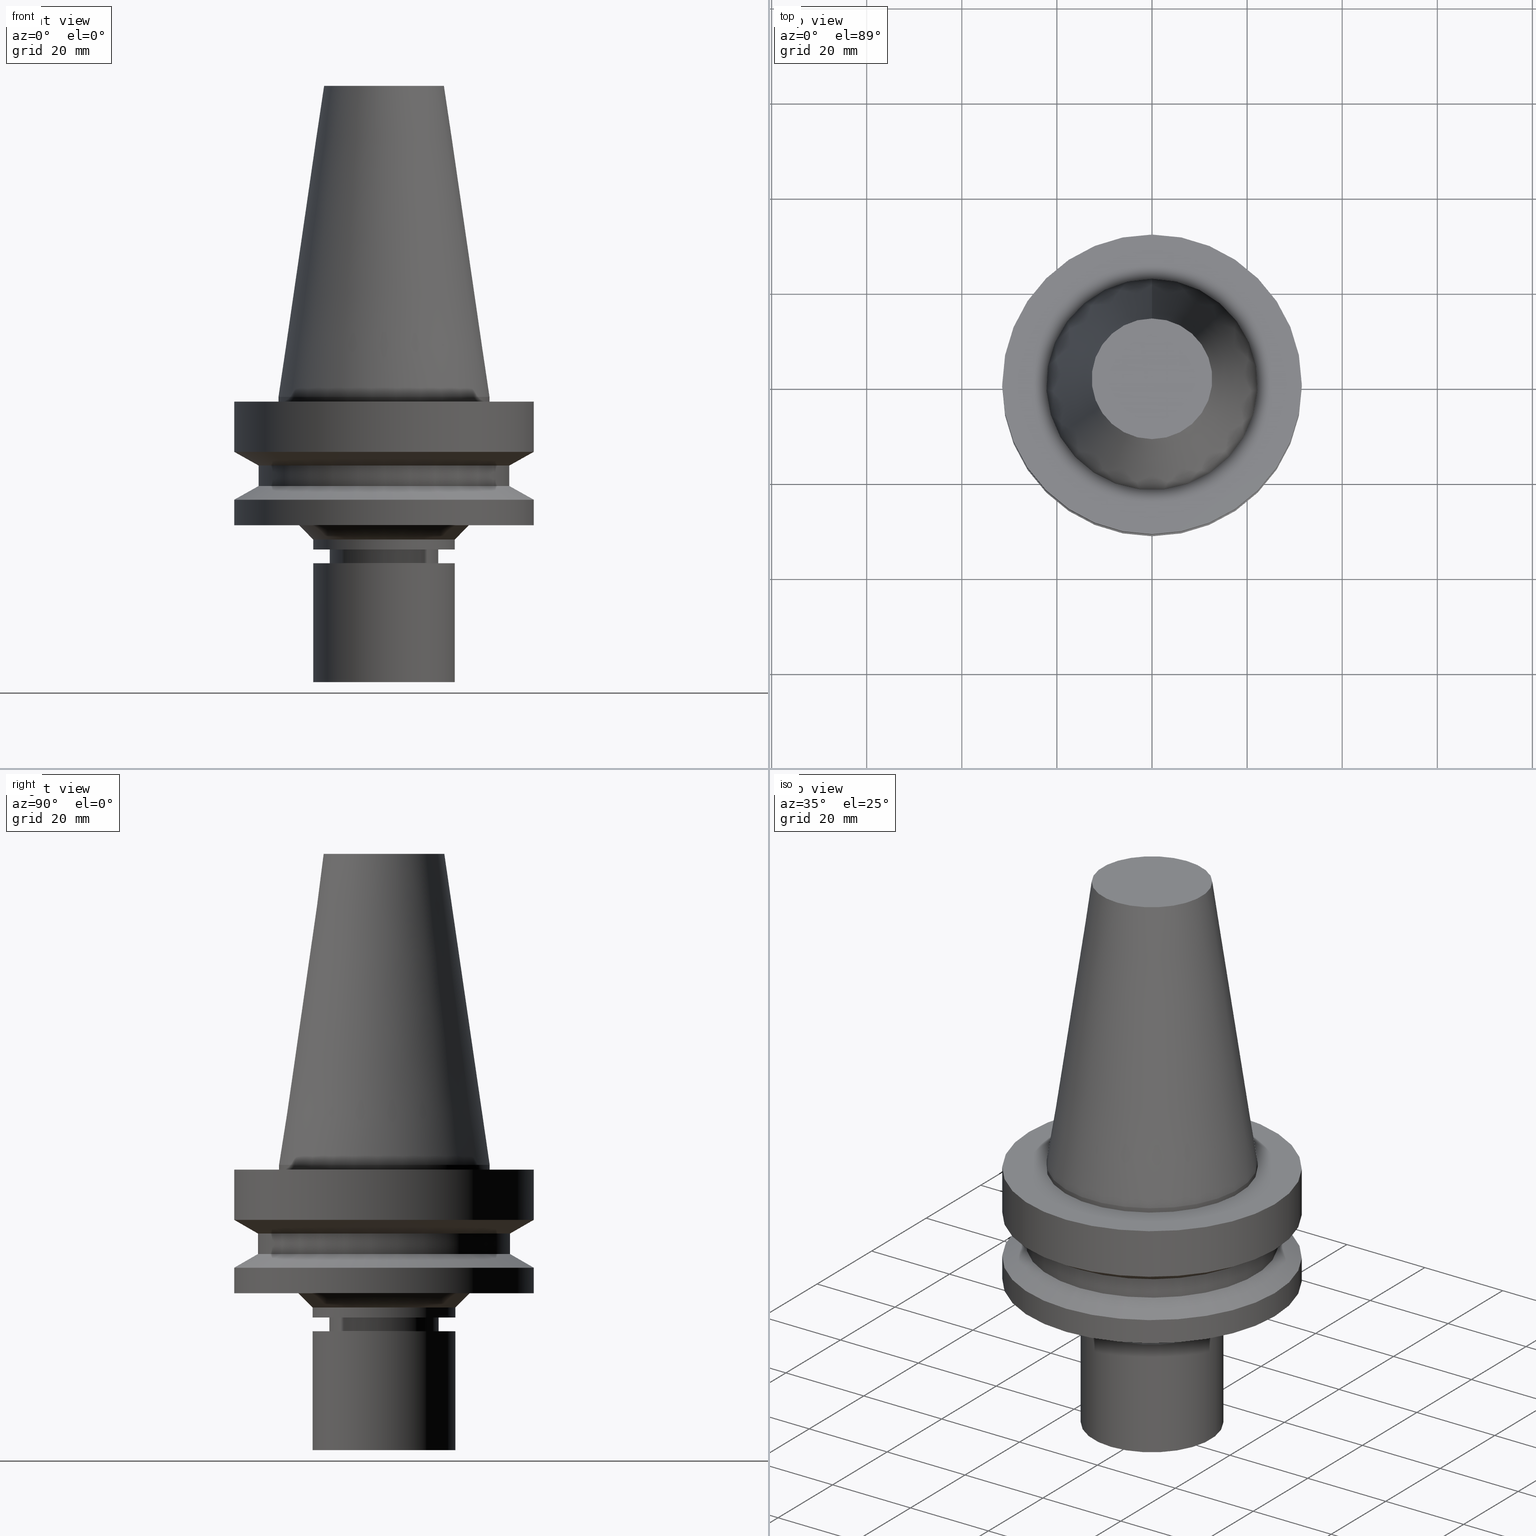
[diagram: canonical four-view strip — front | top / right | iso, engineering-drawing reading convention]
A machine part, canonical four-view strip (front | top / right | iso — engineering-drawing reading convention). The complete STEP part file that produces these views, byte-faithful:
ISO-10303-21;
HEADER;
FILE_DESCRIPTION((''),'1');
FILE_NAME('V:/90_\X2\53D65F9730C730FC30BF\X0\/00_\X2\6DE18DEF30C730FC30BF\X0\/ALL/BBT-BKUS\X2\FF76FF80FF9BFF78FF9E752852A05DE556F3\X0\201801/BBT40-MEGAER/BBT40-MEGAER16-60NL.stp','2018-02-07T01:39:58',(''),(''),'Spatial Interop R21 SP3','Kubotek KeyCreator 2011 V10.0.2 (22737)',' ');
FILE_SCHEMA(('automotive_design'));
ENDSEC;
DATA;
#1=MECHANICAL_DESIGN_GEOMETRIC_PRESENTATION_REPRESENTATION(' ',(#14,#15,#16,#17,#18,#19,#20,#21,#22,#23,#24,#25,#26,#27,#28,#29,#30,#31,#32,#33,#34,#35,#36,#37,#38,#39,#40,#41,#42,#43,#44,#45,#46,#47,#48,#49,#50,#51,#52,#53,#54,#55),#10);
#2=PRODUCT_DEFINITION_CONTEXT('',#56,'design');
#3=APPLICATION_PROTOCOL_DEFINITION('INTERNATIONAL STANDARD','automotive_design',1994,#56);
#4=PRODUCT_CATEGORY_RELATIONSHIP('NONE','NONE',#57,#58);
#5=SHAPE_DEFINITION_REPRESENTATION(#59,#60);
#6=PRODUCT_DEFINITION_CONTEXT('',#61,'design');
#7=APPLICATION_PROTOCOL_DEFINITION('INTERNATIONAL STANDARD','automotive_design',1994,#61);
#8=PRODUCT_CATEGORY_RELATIONSHIP('NONE','NONE',#62,#63);
#9=SHAPE_DEFINITION_REPRESENTATION(#64,#65);
#10= (GEOMETRIC_REPRESENTATION_CONTEXT(3)GLOBAL_UNCERTAINTY_ASSIGNED_CONTEXT((#68))GLOBAL_UNIT_ASSIGNED_CONTEXT((#70,#71,#72))REPRESENTATION_CONTEXT('NONE','WORKSPACE'));
#14=STYLED_ITEM('',(#74,#75),#76);
#15=STYLED_ITEM('',(#77),#78);
#16=STYLED_ITEM('',(#79,#80),#81);
#17=STYLED_ITEM('',(#82,#83),#84);
#18=STYLED_ITEM('',(#85,#86),#87);
#19=STYLED_ITEM('',(#88,#89),#90);
#20=STYLED_ITEM('',(#91),#92);
#21=STYLED_ITEM('',(#93,#94),#95);
#22=STYLED_ITEM('',(#96,#97),#98);
#23=STYLED_ITEM('',(#99),#100);
#24=STYLED_ITEM('',(#101),#102);
#25=STYLED_ITEM('',(#103,#104),#105);
#26=STYLED_ITEM('',(#106,#107),#108);
#27=STYLED_ITEM('',(#109),#110);
#28=STYLED_ITEM('',(#111),#112);
#29=STYLED_ITEM('',(#113),#114);
#30=STYLED_ITEM('',(#115),#116);
#31=STYLED_ITEM('',(#117,#118),#119);
#32=STYLED_ITEM('',(#120,#121),#122);
#33=STYLED_ITEM('',(#123,#124),#125);
#34=STYLED_ITEM('',(#126,#127),#128);
#35=STYLED_ITEM('',(#129),#130);
#36=STYLED_ITEM('',(#131),#132);
#37=STYLED_ITEM('',(#133,#134),#135);
#38=STYLED_ITEM('',(#136),#137);
#39=STYLED_ITEM('',(#138,#139),#140);
#40=STYLED_ITEM('',(#141),#142);
#41=STYLED_ITEM('',(#143,#144),#145);
#42=STYLED_ITEM('',(#146),#147);
#43=STYLED_ITEM('',(#148,#149),#150);
#44=STYLED_ITEM('',(#151,#152),#153);
#45=STYLED_ITEM('',(#154),#155);
#46=STYLED_ITEM('',(#156),#157);
#47=STYLED_ITEM('',(#158,#159),#160);
#48=STYLED_ITEM('',(#161),#162);
#49=STYLED_ITEM('',(#163),#164);
#50=STYLED_ITEM('',(#165),#166);
#51=STYLED_ITEM('',(#167,#168),#169);
#52=STYLED_ITEM('',(#170,#171),#172);
#53=STYLED_ITEM('',(#173,#174),#175);
#54=STYLED_ITEM('',(#176,#177),#178);
#55=STYLED_ITEM('',(#179),#180);
#56=APPLICATION_CONTEXT(' ');
#57=PRODUCT_CATEGORY('part','NONE');
#58=PRODUCT_RELATED_PRODUCT_CATEGORY('detail',' ',(#181));
#59=PRODUCT_DEFINITION_SHAPE('NONE','NONE',#182);
#60=ADVANCED_BREP_SHAPE_REPRESENTATION('Unnamed[1]',(#160,#183),#10);
#61=APPLICATION_CONTEXT(' ');
#62=PRODUCT_CATEGORY('part','NONE');
#63=PRODUCT_RELATED_PRODUCT_CATEGORY('detail',' ',(#184));
#64=PRODUCT_DEFINITION_SHAPE('NONE','NONE',#185);
#65=ADVANCED_BREP_SHAPE_REPRESENTATION('Unnamed[1]',(#95,#186),#10);
#68=UNCERTAINTY_MEASURE_WITH_UNIT(LENGTH_MEASURE(1.0E-006),#70,'','');
#70= (CONVERSION_BASED_UNIT('MILLIMETRE',#189)LENGTH_UNIT()NAMED_UNIT(#192));
#71= (NAMED_UNIT(#194)PLANE_ANGLE_UNIT()SI_UNIT($,.RADIAN.));
#72= (NAMED_UNIT(#194)SOLID_ANGLE_UNIT()SI_UNIT($,.STERADIAN.));
#74=PRESENTATION_STYLE_ASSIGNMENT((#200));
#75=PRESENTATION_STYLE_ASSIGNMENT((#201));
#76=ADVANCED_FACE('Unnamed[1]',(#202,#203),#204,.T.);
#77=PRESENTATION_STYLE_ASSIGNMENT((#205));
#78=EDGE_CURVE('Unnamed[1]',#206,#206,#207,.T.);
#79=PRESENTATION_STYLE_ASSIGNMENT((#208));
#80=PRESENTATION_STYLE_ASSIGNMENT((#209));
#81=ADVANCED_FACE('Unnamed[1]',(#210),#211,.T.);
#82=PRESENTATION_STYLE_ASSIGNMENT((#212));
#83=PRESENTATION_STYLE_ASSIGNMENT((#213));
#84=ADVANCED_FACE('Unnamed[1]',(#214,#215),#216,.T.);
#85=PRESENTATION_STYLE_ASSIGNMENT((#217));
#86=PRESENTATION_STYLE_ASSIGNMENT((#218));
#87=ADVANCED_FACE('Unnamed[1]',(#219,#220),#221,.T.);
#88=PRESENTATION_STYLE_ASSIGNMENT((#222));
#89=PRESENTATION_STYLE_ASSIGNMENT((#223));
#90=ADVANCED_FACE('Unnamed[1]',(#224,#225),#226,.T.);
#91=PRESENTATION_STYLE_ASSIGNMENT((#227));
#92=EDGE_CURVE('Unnamed[1]',#228,#228,#229,.T.);
#93=PRESENTATION_STYLE_ASSIGNMENT((#230));
#94=PRESENTATION_STYLE_ASSIGNMENT((#231));
#95=MANIFOLD_SOLID_BREP('Unnamed[1]',#232);
#96=PRESENTATION_STYLE_ASSIGNMENT((#233));
#97=PRESENTATION_STYLE_ASSIGNMENT((#234));
#98=ADVANCED_FACE('Unnamed[1]',(#235,#236),#237,.T.);
#99=PRESENTATION_STYLE_ASSIGNMENT((#238));
#100=EDGE_CURVE('Unnamed[1]',#239,#239,#240,.T.);
#101=PRESENTATION_STYLE_ASSIGNMENT((#241));
#102=EDGE_CURVE('Unnamed[1]',#242,#242,#243,.T.);
#103=PRESENTATION_STYLE_ASSIGNMENT((#244));
#104=PRESENTATION_STYLE_ASSIGNMENT((#245));
#105=ADVANCED_FACE('Unnamed[1]',(#246),#247,.T.);
#106=PRESENTATION_STYLE_ASSIGNMENT((#248));
#107=PRESENTATION_STYLE_ASSIGNMENT((#249));
#108=ADVANCED_FACE('Unnamed[1]',(#250,#251),#252,.T.);
#109=PRESENTATION_STYLE_ASSIGNMENT((#253));
#110=EDGE_CURVE('Unnamed[1]',#254,#254,#255,.T.);
#111=PRESENTATION_STYLE_ASSIGNMENT((#256));
#112=EDGE_CURVE('Unnamed[1]',#257,#257,#258,.T.);
#113=PRESENTATION_STYLE_ASSIGNMENT((#259));
#114=EDGE_CURVE('Unnamed[1]',#260,#260,#261,.T.);
#115=PRESENTATION_STYLE_ASSIGNMENT((#262));
#116=EDGE_CURVE('Unnamed[1]',#263,#263,#264,.T.);
#117=PRESENTATION_STYLE_ASSIGNMENT((#265));
#118=PRESENTATION_STYLE_ASSIGNMENT((#266));
#119=ADVANCED_FACE('Unnamed[1]',(#267,#268),#269,.T.);
#120=PRESENTATION_STYLE_ASSIGNMENT((#270));
#121=PRESENTATION_STYLE_ASSIGNMENT((#271));
#122=ADVANCED_FACE('Unnamed[1]',(#272,#273),#274,.T.);
#123=PRESENTATION_STYLE_ASSIGNMENT((#275));
#124=PRESENTATION_STYLE_ASSIGNMENT((#276));
#125=ADVANCED_FACE('Unnamed[1]',(#277,#278),#279,.T.);
#126=PRESENTATION_STYLE_ASSIGNMENT((#280));
#127=PRESENTATION_STYLE_ASSIGNMENT((#281));
#128=ADVANCED_FACE('Unnamed[1]',(#282,#283),#284,.T.);
#129=PRESENTATION_STYLE_ASSIGNMENT((#285));
#130=EDGE_CURVE('Unnamed[1]',#286,#286,#287,.T.);
#131=PRESENTATION_STYLE_ASSIGNMENT((#288));
#132=EDGE_CURVE('Unnamed[1]',#289,#289,#290,.T.);
#133=PRESENTATION_STYLE_ASSIGNMENT((#291));
#134=PRESENTATION_STYLE_ASSIGNMENT((#292));
#135=ADVANCED_FACE('Unnamed[1]',(#293),#294,.T.);
#136=PRESENTATION_STYLE_ASSIGNMENT((#295));
#137=EDGE_CURVE('Unnamed[1]',#296,#296,#297,.T.);
#138=PRESENTATION_STYLE_ASSIGNMENT((#298));
#139=PRESENTATION_STYLE_ASSIGNMENT((#299));
#140=ADVANCED_FACE('Unnamed[1]',(#300,#301),#302,.T.);
#141=PRESENTATION_STYLE_ASSIGNMENT((#303));
#142=EDGE_CURVE('Unnamed[1]',#304,#304,#305,.T.);
#143=PRESENTATION_STYLE_ASSIGNMENT((#306));
#144=PRESENTATION_STYLE_ASSIGNMENT((#307));
#145=ADVANCED_FACE('Unnamed[1]',(#308),#309,.T.);
#146=PRESENTATION_STYLE_ASSIGNMENT((#310));
#147=EDGE_CURVE('Unnamed[1]',#311,#311,#312,.T.);
#148=PRESENTATION_STYLE_ASSIGNMENT((#313));
#149=PRESENTATION_STYLE_ASSIGNMENT((#314));
#150=ADVANCED_FACE('Unnamed[1]',(#315,#316),#317,.T.);
#151=PRESENTATION_STYLE_ASSIGNMENT((#318));
#152=PRESENTATION_STYLE_ASSIGNMENT((#319));
#153=ADVANCED_FACE('Unnamed[1]',(#320,#321),#322,.T.);
#154=PRESENTATION_STYLE_ASSIGNMENT((#323));
#155=EDGE_CURVE('Unnamed[1]',#324,#324,#325,.T.);
#156=PRESENTATION_STYLE_ASSIGNMENT((#326));
#157=EDGE_CURVE('Unnamed[1]',#327,#327,#328,.T.);
#158=PRESENTATION_STYLE_ASSIGNMENT((#329));
#159=PRESENTATION_STYLE_ASSIGNMENT((#330));
#160=MANIFOLD_SOLID_BREP('Unnamed[1]',#331);
#161=PRESENTATION_STYLE_ASSIGNMENT((#332));
#162=EDGE_CURVE('Unnamed[1]',#333,#333,#334,.T.);
#163=PRESENTATION_STYLE_ASSIGNMENT((#335));
#164=EDGE_CURVE('Unnamed[1]',#336,#336,#337,.T.);
#165=PRESENTATION_STYLE_ASSIGNMENT((#338));
#166=EDGE_CURVE('Unnamed[1]',#339,#339,#340,.T.);
#167=PRESENTATION_STYLE_ASSIGNMENT((#341));
#168=PRESENTATION_STYLE_ASSIGNMENT((#342));
#169=ADVANCED_FACE('Unnamed[1]',(#343,#344),#345,.T.);
#170=PRESENTATION_STYLE_ASSIGNMENT((#346));
#171=PRESENTATION_STYLE_ASSIGNMENT((#347));
#172=ADVANCED_FACE('Unnamed[1]',(#348,#349),#350,.T.);
#173=PRESENTATION_STYLE_ASSIGNMENT((#351));
#174=PRESENTATION_STYLE_ASSIGNMENT((#352));
#175=ADVANCED_FACE('Unnamed[1]',(#353,#354),#355,.T.);
#176=PRESENTATION_STYLE_ASSIGNMENT((#356));
#177=PRESENTATION_STYLE_ASSIGNMENT((#357));
#178=ADVANCED_FACE('Unnamed[1]',(#358,#359),#360,.T.);
#179=PRESENTATION_STYLE_ASSIGNMENT((#361));
#180=EDGE_CURVE('Unnamed[1]',#362,#362,#363,.T.);
#181=PRODUCT('Unnamed[1]','Unnamed[1]','PART-Unnamed[1]-DESC',(#364));
#182=PRODUCT_DEFINITION('NONE','NONE',#365,#2);
#183=AXIS2_PLACEMENT_3D('',#366,#367,#368);
#184=PRODUCT('Unnamed[1]','Unnamed[1]','PART-Unnamed[1]-DESC',(#369));
#185=PRODUCT_DEFINITION('NONE','NONE',#370,#6);
#186=AXIS2_PLACEMENT_3D('',#371,#372,#373);
#189=LENGTH_MEASURE_WITH_UNIT(LENGTH_MEASURE(1.0),#374);
#192=DIMENSIONAL_EXPONENTS(1.0,0.0,0.0,0.0,0.0,0.0,0.0);
#194=DIMENSIONAL_EXPONENTS(0.0,0.0,0.0,0.0,0.0,0.0,0.0);
#200=SURFACE_STYLE_USAGE(.BOTH.,#375);
#201=CURVE_STYLE('',#376,POSITIVE_LENGTH_MEASURE(1000.0),#377);
#202=FACE_BOUND('',#378,.T.);
#203=FACE_BOUND('',#379,.T.);
#204=CYLINDRICAL_SURFACE('',#380,31.5);
#205=CURVE_STYLE('',#381,POSITIVE_LENGTH_MEASURE(1000.0),#382);
#206=VERTEX_POINT('',#383);
#207=CIRCLE('',#384,15.0);
#208=SURFACE_STYLE_USAGE(.BOTH.,#385);
#209=CURVE_STYLE('',#386,POSITIVE_LENGTH_MEASURE(1000.0),#387);
#210=FACE_OUTER_BOUND('',#388,.T.);
#211=PLANE('',#389);
#212=SURFACE_STYLE_USAGE(.BOTH.,#390);
#213=CURVE_STYLE('',#391,POSITIVE_LENGTH_MEASURE(1000.0),#392);
#214=FACE_BOUND('',#393,.T.);
#215=FACE_BOUND('',#394,.T.);
#216=CONICAL_SURFACE('',#395,17.4562500000001,0.144812498238936);
#217=SURFACE_STYLE_USAGE(.BOTH.,#396);
#218=CURVE_STYLE('',#397,POSITIVE_LENGTH_MEASURE(1000.0),#398);
#219=FACE_BOUND('',#399,.T.);
#220=FACE_BOUND('',#400,.T.);
#221=CONICAL_SURFACE('',#401,16.5,0.785398163397448);
#222=SURFACE_STYLE_USAGE(.BOTH.,#402);
#223=CURVE_STYLE('',#403,POSITIVE_LENGTH_MEASURE(1000.0),#404);
#224=FACE_BOUND('',#405,.T.);
#225=FACE_BOUND('',#406,.T.);
#226=CYLINDRICAL_SURFACE('',#407,11.0);
#227=CURVE_STYLE('',#408,POSITIVE_LENGTH_MEASURE(1000.0),#409);
#228=VERTEX_POINT('',#410);
#229=CIRCLE('',#411,15.0);
#230=SURFACE_STYLE_USAGE(.BOTH.,#412);
#231=CURVE_STYLE('',#413,POSITIVE_LENGTH_MEASURE(1000.0),#414);
#232=CLOSED_SHELL('',(#81,#135,#172));
#233=SURFACE_STYLE_USAGE(.BOTH.,#415);
#234=CURVE_STYLE('',#416,POSITIVE_LENGTH_MEASURE(1000.0),#417);
#235=FACE_BOUND('',#418,.T.);
#236=FACE_BOUND('',#419,.T.);
#237=CYLINDRICAL_SURFACE('',#420,31.5000000000005);
#238=CURVE_STYLE('',#421,POSITIVE_LENGTH_MEASURE(1000.0),#422);
#239=VERTEX_POINT('',#423);
#240=CIRCLE('',#424,11.4999999999907);
#241=CURVE_STYLE('',#425,POSITIVE_LENGTH_MEASURE(1000.0),#426);
#242=VERTEX_POINT('',#427);
#243=CIRCLE('',#428,22.225);
#244=SURFACE_STYLE_USAGE(.BOTH.,#429);
#245=CURVE_STYLE('',#430,POSITIVE_LENGTH_MEASURE(1000.0),#431);
#246=FACE_OUTER_BOUND('',#432,.T.);
#247=PLANE('',#433);
#248=SURFACE_STYLE_USAGE(.BOTH.,#434);
#249=CURVE_STYLE('',#435,POSITIVE_LENGTH_MEASURE(1000.0),#436);
#250=FACE_BOUND('',#437,.T.);
#251=FACE_BOUND('',#438,.T.);
#252=CYLINDRICAL_SURFACE('',#439,22.225);
#253=CURVE_STYLE('',#440,POSITIVE_LENGTH_MEASURE(1000.0),#441);
#254=VERTEX_POINT('',#442);
#255=CIRCLE('',#443,15.0);
#256=CURVE_STYLE('',#444,POSITIVE_LENGTH_MEASURE(1000.0),#445);
#257=VERTEX_POINT('',#446);
#258=CIRCLE('',#447,15.0);
#259=CURVE_STYLE('',#448,POSITIVE_LENGTH_MEASURE(1000.0),#449);
#260=VERTEX_POINT('',#450);
#261=CIRCLE('',#451,12.6875000000001);
#262=CURVE_STYLE('',#452,POSITIVE_LENGTH_MEASURE(1000.0),#453);
#263=VERTEX_POINT('',#454);
#264=CIRCLE('',#455,31.5000000000007);
#265=SURFACE_STYLE_USAGE(.BOTH.,#456);
#266=CURVE_STYLE('',#457,POSITIVE_LENGTH_MEASURE(1000.0),#458);
#267=FACE_BOUND('',#459,.T.);
#268=FACE_BOUND('',#460,.T.);
#269=CYLINDRICAL_SURFACE('',#461,15.0);
#270=SURFACE_STYLE_USAGE(.BOTH.,#462);
#271=CURVE_STYLE('',#463,POSITIVE_LENGTH_MEASURE(1000.0),#464);
#272=FACE_OUTER_BOUND('',#465,.T.);
#273=FACE_BOUND('',#466,.T.);
#274=PLANE('',#467);
#275=SURFACE_STYLE_USAGE(.BOTH.,#468);
#276=CURVE_STYLE('',#469,POSITIVE_LENGTH_MEASURE(1000.0),#470);
#277=FACE_BOUND('',#471,.T.);
#278=FACE_OUTER_BOUND('',#472,.T.);
#279=PLANE('',#473);
#280=SURFACE_STYLE_USAGE(.BOTH.,#474);
#281=CURVE_STYLE('',#475,POSITIVE_LENGTH_MEASURE(1000.0),#476);
#282=FACE_BOUND('',#477,.T.);
#283=FACE_BOUND('',#478,.T.);
#284=CONICAL_SURFACE('',#479,10.4499999999999,0.523598775598223);
#285=CURVE_STYLE('',#480,POSITIVE_LENGTH_MEASURE(1000.0),#481);
#286=VERTEX_POINT('',#482);
#287=CIRCLE('',#483,31.5000000000004);
#288=CURVE_STYLE('',#484,POSITIVE_LENGTH_MEASURE(1000.0),#485);
#289=VERTEX_POINT('',#486);
#290=CIRCLE('',#487,9.89999999999958);
#291=SURFACE_STYLE_USAGE(.BOTH.,#488);
#292=CURVE_STYLE('',#489,POSITIVE_LENGTH_MEASURE(1000.0),#490);
#293=FACE_OUTER_BOUND('',#491,.T.);
#294=PLANE('',#492);
#295=CURVE_STYLE('',#493,POSITIVE_LENGTH_MEASURE(1000.0),#494);
#296=VERTEX_POINT('',#495);
#297=CIRCLE('',#496,22.225);
#298=SURFACE_STYLE_USAGE(.BOTH.,#497);
#299=CURVE_STYLE('',#498,POSITIVE_LENGTH_MEASURE(1000.0),#499);
#300=FACE_BOUND('',#500,.T.);
#301=FACE_BOUND('',#501,.T.);
#302=CYLINDRICAL_SURFACE('',#502,26.4999999999997);
#303=CURVE_STYLE('',#503,POSITIVE_LENGTH_MEASURE(1000.0),#504);
#304=VERTEX_POINT('',#505);
#305=CIRCLE('',#506,31.5000000000003);
#306=SURFACE_STYLE_USAGE(.BOTH.,#507);
#307=CURVE_STYLE('',#508,POSITIVE_LENGTH_MEASURE(1000.0),#509);
#308=FACE_OUTER_BOUND('',#510,.T.);
#309=PLANE('',#511);
#310=CURVE_STYLE('',#512,POSITIVE_LENGTH_MEASURE(1000.0),#513);
#311=VERTEX_POINT('',#514);
#312=CIRCLE('',#515,31.4999999999996);
#313=SURFACE_STYLE_USAGE(.BOTH.,#516);
#314=CURVE_STYLE('',#517,POSITIVE_LENGTH_MEASURE(1000.0),#518);
#315=FACE_BOUND('',#519,.T.);
#316=FACE_OUTER_BOUND('',#520,.T.);
#317=PLANE('',#521);
#318=SURFACE_STYLE_USAGE(.BOTH.,#522);
#319=CURVE_STYLE('',#523,POSITIVE_LENGTH_MEASURE(1000.0),#524);
#320=FACE_BOUND('',#525,.T.);
#321=FACE_BOUND('',#526,.T.);
#322=CYLINDRICAL_SURFACE('',#527,11.4999999999964);
#323=CURVE_STYLE('',#528,POSITIVE_LENGTH_MEASURE(1000.0),#529);
#324=VERTEX_POINT('',#530);
#325=CIRCLE('',#531,11.500000000002);
#326=CURVE_STYLE('',#532,POSITIVE_LENGTH_MEASURE(1000.0),#533);
#327=VERTEX_POINT('',#534);
#328=CIRCLE('',#535,26.4999999999994);
#329=SURFACE_STYLE_USAGE(.BOTH.,#536);
#330=CURVE_STYLE('',#537,POSITIVE_LENGTH_MEASURE(1000.0),#538);
#331=CLOSED_SHELL('',(#145,#84,#108,#122,#76,#175,#140,#178,#98,#125,#87,#119,#150,#153,#169,#90,#128,#105));
#332=CURVE_STYLE('',#539,POSITIVE_LENGTH_MEASURE(1000.0),#540);
#333=VERTEX_POINT('',#541);
#334=CIRCLE('',#542,18.0000000000001);
#335=CURVE_STYLE('',#543,POSITIVE_LENGTH_MEASURE(1000.0),#544);
#336=VERTEX_POINT('',#545);
#337=CIRCLE('',#546,10.9999999999999);
#338=CURVE_STYLE('',#547,POSITIVE_LENGTH_MEASURE(1000.0),#548);
#339=VERTEX_POINT('',#549);
#340=CIRCLE('',#550,11.0000000000002);
#341=SURFACE_STYLE_USAGE(.BOTH.,#551);
#342=CURVE_STYLE('',#552,POSITIVE_LENGTH_MEASURE(1000.0),#553);
#343=FACE_BOUND('',#554,.T.);
#344=FACE_BOUND('',#555,.T.);
#345=CONICAL_SURFACE('',#556,11.250000000001,1.04719755118914);
#346=SURFACE_STYLE_USAGE(.BOTH.,#557);
#347=CURVE_STYLE('',#558,POSITIVE_LENGTH_MEASURE(1000.0),#559);
#348=FACE_BOUND('',#560,.T.);
#349=FACE_BOUND('',#561,.T.);
#350=CYLINDRICAL_SURFACE('',#562,15.0);
#351=SURFACE_STYLE_USAGE(.BOTH.,#563);
#352=CURVE_STYLE('',#564,POSITIVE_LENGTH_MEASURE(1000.0),#565);
#353=FACE_BOUND('',#566,.T.);
#354=FACE_BOUND('',#567,.T.);
#355=CONICAL_SURFACE('',#568,28.9999999999999,1.04719755119657);
#356=SURFACE_STYLE_USAGE(.BOTH.,#569);
#357=CURVE_STYLE('',#570,POSITIVE_LENGTH_MEASURE(1000.0),#571);
#358=FACE_BOUND('',#572,.T.);
#359=FACE_BOUND('',#573,.T.);
#360=CONICAL_SURFACE('',#574,29.0000000000003,1.04719755119651);
#361=CURVE_STYLE('',#575,POSITIVE_LENGTH_MEASURE(1000.0),#576);
#362=VERTEX_POINT('',#577);
#363=CIRCLE('',#578,26.5);
#364=PRODUCT_CONTEXT('',#56,'mechanical');
#365=PRODUCT_DEFINITION_FORMATION_WITH_SPECIFIED_SOURCE(' ','NONE',#181,.NOT_KNOWN.);
#366=CARTESIAN_POINT('',(0.0,0.0,0.0));
#367=DIRECTION('',(0.0,0.0,1.0));
#368=DIRECTION('',(1.0,0.0,0.0));
#369=PRODUCT_CONTEXT('',#61,'mechanical');
#370=PRODUCT_DEFINITION_FORMATION_WITH_SPECIFIED_SOURCE(' ','NONE',#184,.NOT_KNOWN.);
#371=CARTESIAN_POINT('',(0.0,0.0,0.0));
#372=DIRECTION('',(0.0,0.0,1.0));
#373=DIRECTION('',(1.0,0.0,0.0));
#374= (NAMED_UNIT(#192)LENGTH_UNIT()SI_UNIT(.MILLI.,.METRE.));
#375=SURFACE_SIDE_STYLE('',(#580));
#376=DRAUGHTING_PRE_DEFINED_CURVE_FONT('continuous');
#377=COLOUR_RGB('',0.0,1.0,0.0);
#378=EDGE_LOOP('',(#581));
#379=EDGE_LOOP('',(#582));
#380=AXIS2_PLACEMENT_3D('',#583,#584,#585);
#381=DRAUGHTING_PRE_DEFINED_CURVE_FONT('continuous');
#382=COLOUR_RGB('',0.0,1.0,0.0);
#383=CARTESIAN_POINT('',(2.14313189850787E-015,15.0000000000001,-35.0));
#384=AXIS2_PLACEMENT_3D('',#586,#587,#588);
#385=SURFACE_SIDE_STYLE('',(#589));
#386=DRAUGHTING_PRE_DEFINED_CURVE_FONT('continuous');
#387=COLOUR_RGB('',0.0,1.0,0.0);
#388=EDGE_LOOP('',(#590));
#389=AXIS2_PLACEMENT_3D('',#591,#592,#593);
#390=SURFACE_SIDE_STYLE('',(#594));
#391=DRAUGHTING_PRE_DEFINED_CURVE_FONT('continuous');
#392=COLOUR_RGB('',0.0,1.0,0.0);
#393=EDGE_LOOP('',(#595));
#394=EDGE_LOOP('',(#596));
#395=AXIS2_PLACEMENT_3D('',#597,#598,#599);
#396=SURFACE_SIDE_STYLE('',(#600));
#397=DRAUGHTING_PRE_DEFINED_CURVE_FONT('continuous');
#398=COLOUR_RGB('',0.0,1.0,0.0);
#399=EDGE_LOOP('',(#601));
#400=EDGE_LOOP('',(#602));
#401=AXIS2_PLACEMENT_3D('',#603,#604,#605);
#402=SURFACE_SIDE_STYLE('',(#606));
#403=DRAUGHTING_PRE_DEFINED_CURVE_FONT('continuous');
#404=COLOUR_RGB('',0.0,1.0,0.0);
#405=EDGE_LOOP('',(#607));
#406=EDGE_LOOP('',(#608));
#407=AXIS2_PLACEMENT_3D('',#609,#610,#611);
#408=DRAUGHTING_PRE_DEFINED_CURVE_FONT('continuous');
#409=COLOUR_RGB('',0.0,1.0,0.0);
#410=CARTESIAN_POINT('',(1.83697019872103E-015,15.0,-29.9999999999999));
#411=AXIS2_PLACEMENT_3D('',#612,#613,#614);
#412=SURFACE_SIDE_STYLE('',(#615));
#413=DRAUGHTING_PRE_DEFINED_CURVE_FONT('continuous');
#414=COLOUR_RGB('',0.0,1.0,0.0);
#415=SURFACE_SIDE_STYLE('',(#616));
#416=DRAUGHTING_PRE_DEFINED_CURVE_FONT('continuous');
#417=COLOUR_RGB('',0.0,1.0,0.0);
#418=EDGE_LOOP('',(#617));
#419=EDGE_LOOP('',(#618));
#420=AXIS2_PLACEMENT_3D('',#619,#620,#621);
#421=DRAUGHTING_PRE_DEFINED_CURVE_FONT('continuous');
#422=COLOUR_RGB('',0.0,1.0,0.0);
#423=CARTESIAN_POINT('',(1.96555811263151E-015,11.4999999999907,-32.1000000000001));
#424=AXIS2_PLACEMENT_3D('',#622,#623,#624);
#425=DRAUGHTING_PRE_DEFINED_CURVE_FONT('continuous');
#426=COLOUR_RGB('',0.0,1.0,0.0);
#427=CARTESIAN_POINT('',(6.12323399573622E-017,22.2250000000001,-0.999999999999912));
#428=AXIS2_PLACEMENT_3D('',#625,#626,#627);
#429=SURFACE_SIDE_STYLE('',(#628));
#430=DRAUGHTING_PRE_DEFINED_CURVE_FONT('continuous');
#431=COLOUR_RGB('',0.0,1.0,0.0);
#432=EDGE_LOOP('',(#629));
#433=AXIS2_PLACEMENT_3D('',#630,#631,#632);
#434=SURFACE_SIDE_STYLE('',(#633));
#435=DRAUGHTING_PRE_DEFINED_CURVE_FONT('continuous');
#436=COLOUR_RGB('',0.0,1.0,0.0);
#437=EDGE_LOOP('',(#634));
#438=EDGE_LOOP('',(#635));
#439=AXIS2_PLACEMENT_3D('',#636,#637,#638);
#440=DRAUGHTING_PRE_DEFINED_CURVE_FONT('continuous');
#441=COLOUR_RGB('',0.0,1.0,0.0);
#442=CARTESIAN_POINT('',(1.96555811263146E-015,15.0,-32.0999999999994));
#443=AXIS2_PLACEMENT_3D('',#639,#640,#641);
#444=DRAUGHTING_PRE_DEFINED_CURVE_FONT('continuous');
#445=COLOUR_RGB('',0.0,1.0,0.0);
#446=CARTESIAN_POINT('',(3.67394039744206E-015,15.0,-60.0));
#447=AXIS2_PLACEMENT_3D('',#642,#643,#644);
#448=DRAUGHTING_PRE_DEFINED_CURVE_FONT('continuous');
#449=COLOUR_RGB('',0.0,1.0,0.0);
#450=CARTESIAN_POINT('',(-4.00459503321185E-015,12.6875000000002,65.4000000000001));
#451=AXIS2_PLACEMENT_3D('',#645,#646,#647);
#452=DRAUGHTING_PRE_DEFINED_CURVE_FONT('continuous');
#453=COLOUR_RGB('',0.0,1.0,0.0);
#454=CARTESIAN_POINT('',(1.32473071268174E-015,31.5000000000007,-21.6344943473346));
#455=AXIS2_PLACEMENT_3D('',#648,#649,#650);
#456=SURFACE_SIDE_STYLE('',(#651));
#457=DRAUGHTING_PRE_DEFINED_CURVE_FONT('continuous');
#458=COLOUR_RGB('',0.0,1.0,0.0);
#459=EDGE_LOOP('',(#652));
#460=EDGE_LOOP('',(#653));
#461=AXIS2_PLACEMENT_3D('',#654,#655,#656);
#462=SURFACE_SIDE_STYLE('',(#657));
#463=DRAUGHTING_PRE_DEFINED_CURVE_FONT('continuous');
#464=COLOUR_RGB('',0.0,1.0,0.0);
#465=EDGE_LOOP('',(#658));
#466=EDGE_LOOP('',(#659));
#467=AXIS2_PLACEMENT_3D('',#660,#661,#662);
#468=SURFACE_SIDE_STYLE('',(#663));
#469=DRAUGHTING_PRE_DEFINED_CURVE_FONT('continuous');
#470=COLOUR_RGB('',0.0,1.0,0.0);
#471=EDGE_LOOP('',(#664));
#472=EDGE_LOOP('',(#665));
#473=AXIS2_PLACEMENT_3D('',#666,#667,#668);
#474=SURFACE_SIDE_STYLE('',(#669));
#475=DRAUGHTING_PRE_DEFINED_CURVE_FONT('continuous');
#476=COLOUR_RGB('',0.0,1.0,0.0);
#477=EDGE_LOOP('',(#670));
#478=EDGE_LOOP('',(#671));
#479=AXIS2_PLACEMENT_3D('',#672,#673,#674);
#480=DRAUGHTING_PRE_DEFINED_CURVE_FONT('continuous');
#481=COLOUR_RGB('',0.0,1.0,0.0);
#482=CARTESIAN_POINT('',(1.65327317884891E-015,31.5000000000004,-26.9999999999998));
#483=AXIS2_PLACEMENT_3D('',#675,#676,#677);
#484=DRAUGHTING_PRE_DEFINED_CURVE_FONT('continuous');
#485=COLOUR_RGB('',0.0,1.0,0.0);
#486=CARTESIAN_POINT('',(3.13509580581717E-015,9.8999999999996,-51.1999999999992));
#487=AXIS2_PLACEMENT_3D('',#678,#679,#680);
#488=SURFACE_SIDE_STYLE('',(#681));
#489=DRAUGHTING_PRE_DEFINED_CURVE_FONT('continuous');
#490=COLOUR_RGB('',0.0,1.0,0.0);
#491=EDGE_LOOP('',(#682));
#492=AXIS2_PLACEMENT_3D('',#683,#684,#685);
#493=DRAUGHTING_PRE_DEFINED_CURVE_FONT('continuous');
#494=COLOUR_RGB('',0.0,1.0,0.0);
#495=CARTESIAN_POINT('',(1.71319921032766E-029,22.2250000000001,-2.8153873565375E-013));
#496=AXIS2_PLACEMENT_3D('',#686,#687,#688);
#497=SURFACE_SIDE_STYLE('',(#689));
#498=DRAUGHTING_PRE_DEFINED_CURVE_FONT('continuous');
#499=COLOUR_RGB('',0.0,1.0,0.0);
#500=EDGE_LOOP('',(#690));
#501=EDGE_LOOP('',(#691));
#502=AXIS2_PLACEMENT_3D('',#692,#693,#694);
#503=DRAUGHTING_PRE_DEFINED_CURVE_FONT('continuous');
#504=COLOUR_RGB('',0.0,1.0,0.0);
#505=CARTESIAN_POINT('',(7.08182973902924E-016,31.5000000000004,-11.5655056526664));
#506=AXIS2_PLACEMENT_3D('',#695,#696,#697);
#507=SURFACE_SIDE_STYLE('',(#698));
#508=DRAUGHTING_PRE_DEFINED_CURVE_FONT('continuous');
#509=COLOUR_RGB('',0.0,1.0,0.0);
#510=EDGE_LOOP('',(#699));
#511=AXIS2_PLACEMENT_3D('',#700,#701,#702);
#512=DRAUGHTING_PRE_DEFINED_CURVE_FONT('continuous');
#513=COLOUR_RGB('',0.0,1.0,0.0);
#514=CARTESIAN_POINT('',(6.12323399573568E-017,31.4999999999997,-0.999999999999825));
#515=AXIS2_PLACEMENT_3D('',#703,#704,#705);
#516=SURFACE_SIDE_STYLE('',(#706));
#517=DRAUGHTING_PRE_DEFINED_CURVE_FONT('continuous');
#518=COLOUR_RGB('',0.0,1.0,0.0);
#519=EDGE_LOOP('',(#707));
#520=EDGE_LOOP('',(#708));
#521=AXIS2_PLACEMENT_3D('',#709,#710,#711);
#522=SURFACE_SIDE_STYLE('',(#712));
#523=DRAUGHTING_PRE_DEFINED_CURVE_FONT('continuous');
#524=COLOUR_RGB('',0.0,1.0,0.0);
#525=EDGE_LOOP('',(#713));
#526=EDGE_LOOP('',(#714));
#527=AXIS2_PLACEMENT_3D('',#715,#716,#717);
#528=DRAUGHTING_PRE_DEFINED_CURVE_FONT('continuous');
#529=COLOUR_RGB('',0.0,1.0,0.0);
#530=CARTESIAN_POINT('',(2.32139913239222E-015,11.5000000000021,-37.9113248653974));
#531=AXIS2_PLACEMENT_3D('',#718,#719,#720);
#532=DRAUGHTING_PRE_DEFINED_CURVE_FONT('continuous');
#533=COLOUR_RGB('',0.0,1.0,0.0);
#534=CARTESIAN_POINT('',(8.8494551369045E-016,26.4999999999995,-14.4522569986152));
#535=AXIS2_PLACEMENT_3D('',#721,#722,#723);
#536=SURFACE_SIDE_STYLE('',(#724));
#537=DRAUGHTING_PRE_DEFINED_CURVE_FONT('continuous');
#538=COLOUR_RGB('',0.0,1.0,0.0);
#539=DRAUGHTING_PRE_DEFINED_CURVE_FONT('continuous');
#540=COLOUR_RGB('',0.0,1.0,0.0);
#541=CARTESIAN_POINT('',(1.65327317884891E-015,18.0000000000001,-26.9999999999998));
#542=AXIS2_PLACEMENT_3D('',#725,#726,#727);
#543=DRAUGHTING_PRE_DEFINED_CURVE_FONT('continuous');
#544=COLOUR_RGB('',0.0,1.0,0.0);
#545=CARTESIAN_POINT('',(2.33907538637135E-015,10.9999999999999,-38.1999999999984));
#546=AXIS2_PLACEMENT_3D('',#728,#729,#730);
#547=DRAUGHTING_PRE_DEFINED_CURVE_FONT('continuous');
#548=COLOUR_RGB('',0.0,1.0,0.0);
#549=CARTESIAN_POINT('',(3.01843252955734E-015,11.0000000000002,-49.2947441116719));
#550=AXIS2_PLACEMENT_3D('',#731,#732,#733);
#551=SURFACE_SIDE_STYLE('',(#734));
#552=DRAUGHTING_PRE_DEFINED_CURVE_FONT('continuous');
#553=COLOUR_RGB('',0.0,1.0,0.0);
#554=EDGE_LOOP('',(#735));
#555=EDGE_LOOP('',(#736));
#556=AXIS2_PLACEMENT_3D('',#737,#738,#739);
#557=SURFACE_SIDE_STYLE('',(#740));
#558=DRAUGHTING_PRE_DEFINED_CURVE_FONT('continuous');
#559=COLOUR_RGB('',0.0,1.0,0.0);
#560=EDGE_LOOP('',(#741));
#561=EDGE_LOOP('',(#742));
#562=AXIS2_PLACEMENT_3D('',#743,#744,#745);
#563=SURFACE_SIDE_STYLE('',(#746));
#564=DRAUGHTING_PRE_DEFINED_CURVE_FONT('continuous');
#565=COLOUR_RGB('',0.0,1.0,0.0);
#566=EDGE_LOOP('',(#747));
#567=EDGE_LOOP('',(#748));
#568=AXIS2_PLACEMENT_3D('',#749,#750,#751);
#569=SURFACE_SIDE_STYLE('',(#752));
#570=DRAUGHTING_PRE_DEFINED_CURVE_FONT('continuous');
#571=COLOUR_RGB('',0.0,1.0,0.0);
#572=EDGE_LOOP('',(#753));
#573=EDGE_LOOP('',(#754));
#574=AXIS2_PLACEMENT_3D('',#755,#756,#757);
#575=DRAUGHTING_PRE_DEFINED_CURVE_FONT('continuous');
#576=COLOUR_RGB('',0.0,1.0,0.0);
#577=CARTESIAN_POINT('',(1.1479681728942E-015,26.5,-18.7477430013855));
#578=AXIS2_PLACEMENT_3D('',#758,#759,#760);
#580=SURFACE_STYLE_FILL_AREA(#761);
#581=ORIENTED_EDGE('',*,*,#142,.F.);
#582=ORIENTED_EDGE('',*,*,#147,.T.);
#583=CARTESIAN_POINT('',(3.84707656930139E-016,3.81572142621894E-014,-6.28275282633307));
#584=DIRECTION('',(6.12323399573677E-017,-5.36731610657138E-016,-1.0));
#585=DIRECTION('',(2.80381797188564E-032,1.0,-5.36731610657138E-016));
#586=CARTESIAN_POINT('',(2.14313189850787E-015,2.27437599330281E-014,-35.0));
#587=DIRECTION('',(6.12323399573677E-017,-5.36731610657134E-016,-1.0));
#588=DIRECTION('',(2.80381797188541E-032,1.0,-5.36731610657134E-016));
#589=SURFACE_STYLE_FILL_AREA(#762);
#590=ORIENTED_EDGE('',*,*,#112,.T.);
#591=CARTESIAN_POINT('',(3.67394039744206E-015,7.5,-60.0));
#592=DIRECTION('',(6.12323399573677E-017,-3.51230477258665E-016,-1.0));
#593=DIRECTION('',(1.66795112561221E-032,1.0,-3.51230477258665E-016));
#594=SURFACE_STYLE_FILL_AREA(#763);
#595=ORIENTED_EDGE('',*,*,#137,.F.);
#596=ORIENTED_EDGE('',*,*,#114,.T.);
#597=CARTESIAN_POINT('',(-2.00229751660592E-015,5.9080489974516E-014,32.6999999999999));
#598=DIRECTION('',(6.12323399573677E-017,-5.36731610657168E-016,-1.0));
#599=DIRECTION('',(2.8038179718853E-032,1.0,-5.36731610657168E-016));
#600=SURFACE_STYLE_FILL_AREA(#764);
#601=ORIENTED_EDGE('',*,*,#92,.F.);
#602=ORIENTED_EDGE('',*,*,#162,.T.);
#603=CARTESIAN_POINT('',(1.74512168878497E-015,2.62325154022995E-014,-28.4999999999999));
#604=DIRECTION('',(-6.12323399573676E-017,5.3673161065709E-016,1.0));
#605=DIRECTION('',(2.80381797188519E-032,1.0,-5.3673161065709E-016));
#606=SURFACE_STYLE_FILL_AREA(#765);
#607=ORIENTED_EDGE('',*,*,#166,.F.);
#608=ORIENTED_EDGE('',*,*,#164,.T.);
#609=CARTESIAN_POINT('',(2.67875395796434E-015,1.80487688404825E-014,-43.7473720558352));
#610=DIRECTION('',(6.12323399573677E-017,-5.36731610657163E-016,-1.0));
#611=DIRECTION('',(2.80381797188559E-032,1.0,-5.36731610657163E-016));
#612=CARTESIAN_POINT('',(1.83697019872102E-015,2.54274179863138E-014,-29.9999999999999));
#613=DIRECTION('',(6.12323399573677E-017,-5.36731610657083E-016,-1.0));
#614=DIRECTION('',(2.80381797188493E-032,1.0,-5.36731610657083E-016));
#615=SURFACE_STYLE_FILL_AREA(#766);
#616=SURFACE_STYLE_FILL_AREA(#767);
#617=ORIENTED_EDGE('',*,*,#130,.F.);
#618=ORIENTED_EDGE('',*,*,#116,.T.);
#619=CARTESIAN_POINT('',(1.48900194576533E-015,2.84775310637577E-014,-24.3172471736672));
#620=DIRECTION('',(6.12323399573677E-017,-5.36731610657129E-016,-1.0));
#621=DIRECTION('',(2.80381797188559E-032,1.0,-5.36731610657129E-016));
#622=CARTESIAN_POINT('',(1.96555811263151E-015,2.43002816039337E-014,-32.1000000000001));
#623=DIRECTION('',(6.12323399573677E-017,-5.36731610657157E-016,-1.0));
#624=DIRECTION('',(2.80381797188577E-032,1.0,-5.36731610657157E-016));
#625=CARTESIAN_POINT('',(6.12323399573616E-017,4.09926346953707E-014,-0.999999999999901));
#626=DIRECTION('',(6.12323399573677E-017,-5.36731610657161E-016,-1.0));
#627=DIRECTION('',(2.80381797188567E-032,1.0,-5.36731610657162E-016));
#628=SURFACE_STYLE_FILL_AREA(#768);
#629=ORIENTED_EDGE('',*,*,#132,.T.);
#630=CARTESIAN_POINT('',(3.1350958058172E-015,4.9499999999998,-51.1999999999996));
#631=DIRECTION('',(6.12323399573677E-017,8.40956970879301E-014,-1.0));
#632=DIRECTION('',(-5.15420346577072E-030,1.0,8.40956970879301E-014));
#633=SURFACE_STYLE_FILL_AREA(#769);
#634=ORIENTED_EDGE('',*,*,#102,.F.);
#635=ORIENTED_EDGE('',*,*,#137,.T.);
#636=CARTESIAN_POINT('',(3.06161699786891E-017,4.12610005006992E-014,-0.500000000000085));
#637=DIRECTION('',(6.12323399573677E-017,-5.36731610657161E-016,-1.0));
#638=DIRECTION('',(2.80381797188567E-032,1.0,-5.36731610657162E-016));
#639=CARTESIAN_POINT('',(1.96555811263146E-015,2.43002816039341E-014,-32.0999999999994));
#640=DIRECTION('',(6.12323399573677E-017,-5.36731610657083E-016,-1.0));
#641=DIRECTION('',(2.80381797188493E-032,1.0,-5.36731610657083E-016));
#642=CARTESIAN_POINT('',(3.67394039744206E-015,9.32546966659973E-015,-60.0));
#643=DIRECTION('',(6.12323399573677E-017,-5.36731610657134E-016,-1.0));
#644=DIRECTION('',(2.80381797188541E-032,1.0,-5.36731610657134E-016));
#645=CARTESIAN_POINT('',(-4.00459503321185E-015,7.66316136430044E-014,65.4000000000001));
#646=DIRECTION('',(6.12323399573677E-017,-5.36731610657179E-016,-1.0));
#647=DIRECTION('',(2.80381797188536E-032,1.0,-5.36731610657179E-016));
#648=CARTESIAN_POINT('',(1.32473071268174E-015,2.99174493092302E-014,-21.6344943473346));
#649=DIRECTION('',(6.12323399573677E-017,-5.36731610657127E-016,-1.0));
#650=DIRECTION('',(2.80381797188558E-032,1.0,-5.36731610657127E-016));
#651=SURFACE_STYLE_FILL_AREA(#770);
#652=ORIENTED_EDGE('',*,*,#110,.F.);
#653=ORIENTED_EDGE('',*,*,#92,.T.);
#654=CARTESIAN_POINT('',(1.90126415567624E-015,2.4863849795124E-014,-31.0499999999996));
#655=DIRECTION('',(6.12323399573677E-017,-5.36731610657083E-016,-1.0));
#656=DIRECTION('',(2.80381797188493E-032,1.0,-5.36731610657083E-016));
#657=SURFACE_STYLE_FILL_AREA(#771);
#658=ORIENTED_EDGE('',*,*,#147,.F.);
#659=ORIENTED_EDGE('',*,*,#102,.T.);
#660=CARTESIAN_POINT('',(6.12323399573595E-017,26.8624999999999,-0.999999999999869));
#661=DIRECTION('',(-6.12323399573677E-017,-9.35138060429241E-015,1.0));
#662=DIRECTION('',(5.77434068963536E-031,-1.0,-9.35138060429241E-015));
#663=SURFACE_STYLE_FILL_AREA(#772);
#664=ORIENTED_EDGE('',*,*,#162,.F.);
#665=ORIENTED_EDGE('',*,*,#130,.T.);
#666=CARTESIAN_POINT('',(1.65327317884891E-015,24.7500000000003,-26.9999999999998));
#667=DIRECTION('',(6.12323399573677E-017,2.49094046578169E-015,-1.0));
#668=DIRECTION('',(-1.57353266145077E-031,1.0,2.49094046578169E-015));
#669=SURFACE_STYLE_FILL_AREA(#773);
#670=ORIENTED_EDGE('',*,*,#132,.F.);
#671=ORIENTED_EDGE('',*,*,#166,.T.);
#672=CARTESIAN_POINT('',(3.07676416768726E-015,1.45600133712109E-014,-50.2473720558355));
#673=DIRECTION('',(-6.12323399573677E-017,5.36731610657127E-016,1.0));
#674=DIRECTION('',(2.8038179718854E-032,1.0,-5.36731610657127E-016));
#675=CARTESIAN_POINT('',(1.65327317884891E-015,2.70376128182853E-014,-26.9999999999997));
#676=DIRECTION('',(6.12323399573677E-017,-5.36731610657132E-016,-1.0));
#677=DIRECTION('',(2.80381797188561E-032,1.0,-5.36731610657132E-016));
#678=CARTESIAN_POINT('',(3.13509580581717E-015,1.4048707840383E-014,-51.1999999999991));
#679=DIRECTION('',(6.12323399573677E-017,-5.36731610657098E-016,-1.0));
#680=DIRECTION('',(2.80381797188568E-032,1.0,-5.36731610657098E-016));
#681=SURFACE_STYLE_FILL_AREA(#774);
#682=ORIENTED_EDGE('',*,*,#78,.F.);
#683=CARTESIAN_POINT('',(2.14313189850787E-015,7.50000000000004,-35.0));
#684=DIRECTION('',(-6.12323399573677E-017,3.51230477258663E-016,1.0));
#685=DIRECTION('',(-1.6679511256122E-032,-1.0,3.51230477258663E-016));
#686=CARTESIAN_POINT('',(1.65331138531142E-029,4.15293663060276E-014,-2.70006239588838E-013));
#687=DIRECTION('',(6.12323399573677E-017,-5.36731610657161E-016,-1.0));
#688=DIRECTION('',(2.80381797188567E-032,1.0,-5.36731610657162E-016));
#689=SURFACE_STYLE_FILL_AREA(#775);
#690=ORIENTED_EDGE('',*,*,#180,.F.);
#691=ORIENTED_EDGE('',*,*,#157,.T.);
#692=CARTESIAN_POINT('',(1.01645684329232E-015,3.26196215691192E-014,-16.6000000000003));
#693=DIRECTION('',(6.12323399573677E-017,-5.36731610657175E-016,-1.0));
#694=DIRECTION('',(2.80381797188569E-032,1.0,-5.36731610657175E-016));
#695=CARTESIAN_POINT('',(7.08182973902923E-016,3.5321793829008E-014,-11.5655056526663));
#696=DIRECTION('',(6.12323399573676E-017,-5.36731610657132E-016,-1.0));
#697=DIRECTION('',(2.80381797188561E-032,1.0,-5.36731610657132E-016));
#698=SURFACE_STYLE_FILL_AREA(#776);
#699=ORIENTED_EDGE('',*,*,#114,.F.);
#700=CARTESIAN_POINT('',(-4.00459503321185E-015,6.34375000000014,65.4000000000001));
#701=DIRECTION('',(-6.12323399573677E-017,9.97602686800683E-016,1.0));
#702=DIRECTION('',(-5.62583941297938E-032,-1.0,9.97602686800683E-016));
#703=CARTESIAN_POINT('',(6.12323399573559E-017,4.09926346953707E-014,-0.999999999999808));
#704=DIRECTION('',(6.12323399573677E-017,-5.36731610657144E-016,-1.0));
#705=DIRECTION('',(2.80381797188567E-032,1.0,-5.36731610657144E-016));
#706=SURFACE_STYLE_FILL_AREA(#777);
#707=ORIENTED_EDGE('',*,*,#100,.F.);
#708=ORIENTED_EDGE('',*,*,#110,.T.);
#709=CARTESIAN_POINT('',(1.96555811263148E-015,13.2499999999953,-32.0999999999997));
#710=DIRECTION('',(6.12323399573677E-017,2.03134674896546E-013,-1.0));
#711=DIRECTION('',(-1.24432386231254E-029,1.0,2.03134674896546E-013));
#712=SURFACE_STYLE_FILL_AREA(#778);
#713=ORIENTED_EDGE('',*,*,#155,.F.);
#714=ORIENTED_EDGE('',*,*,#100,.T.);
#715=CARTESIAN_POINT('',(2.14347862251186E-015,2.27407207264055E-014,-35.0056624326987));
#716=DIRECTION('',(6.12323399573677E-017,-5.36731610657102E-016,-1.0));
#717=DIRECTION('',(2.80381797188595E-032,1.0,-5.36731610657102E-016));
#718=CARTESIAN_POINT('',(2.32139913239222E-015,2.11811598488772E-014,-37.9113248653974));
#719=DIRECTION('',(6.12323399573677E-017,-5.36731610657118E-016,-1.0));
#720=DIRECTION('',(2.80381797188612E-032,1.0,-5.36731610657118E-016));
#721=CARTESIAN_POINT('',(8.8494551369045E-016,3.37723831295302E-014,-14.4522569986152));
#722=DIRECTION('',(6.12323399573677E-017,-5.36731610657181E-016,-1.0));
#723=DIRECTION('',(2.80381797188572E-032,1.0,-5.36731610657181E-016));
#724=SURFACE_STYLE_FILL_AREA(#779);
#725=CARTESIAN_POINT('',(1.65327317884891E-015,2.70376128182853E-014,-26.9999999999998));
#726=DIRECTION('',(6.12323399573677E-017,-5.36731610657097E-016,-1.0));
#727=DIRECTION('',(2.80381797188491E-032,1.0,-5.36731610657097E-016));
#728=CARTESIAN_POINT('',(2.33907538637135E-015,2.10262187789261E-014,-38.1999999999984));
#729=DIRECTION('',(6.12323399573677E-017,-5.36731610657098E-016,-1.0));
#730=DIRECTION('',(2.80381797188523E-032,1.0,-5.36731610657098E-016));
#731=CARTESIAN_POINT('',(3.01843252955734E-015,1.50713189020388E-014,-49.2947441116719));
#732=DIRECTION('',(6.12323399573677E-017,-5.36731610657154E-016,-1.0));
#733=DIRECTION('',(2.80381797188555E-032,1.0,-5.36731610657154E-016));
#734=SURFACE_STYLE_FILL_AREA(#780);
#735=ORIENTED_EDGE('',*,*,#164,.F.);
#736=ORIENTED_EDGE('',*,*,#155,.T.);
#737=CARTESIAN_POINT('',(2.33023725938178E-015,2.11036893139016E-014,-38.0556624326979));
#738=DIRECTION('',(-6.12323399573677E-017,5.36731610657144E-016,1.0));
#739=DIRECTION('',(2.80381797188569E-032,1.0,-5.36731610657144E-016));
#740=SURFACE_STYLE_FILL_AREA(#781);
#741=ORIENTED_EDGE('',*,*,#112,.F.);
#742=ORIENTED_EDGE('',*,*,#78,.T.);
#743=CARTESIAN_POINT('',(2.90853614797496E-015,1.60346147998139E-014,-47.5));
#744=DIRECTION('',(6.12323399573677E-017,-5.36731610657134E-016,-1.0));
#745=DIRECTION('',(2.80381797188541E-032,1.0,-5.36731610657134E-016));
#746=SURFACE_STYLE_FILL_AREA(#782);
#747=ORIENTED_EDGE('',*,*,#157,.F.);
#748=ORIENTED_EDGE('',*,*,#142,.T.);
#749=CARTESIAN_POINT('',(7.96564243796686E-016,3.45470884792691E-014,-13.0088813256408));
#750=DIRECTION('',(-6.12323399573677E-017,5.36731610657154E-016,1.0));
#751=DIRECTION('',(2.80381797188566E-032,1.0,-5.36731610657154E-016));
#752=SURFACE_STYLE_FILL_AREA(#783);
#753=ORIENTED_EDGE('',*,*,#116,.F.);
#754=ORIENTED_EDGE('',*,*,#180,.T.);
#755=CARTESIAN_POINT('',(1.23634944278797E-015,3.06921546589692E-014,-20.1911186743601));
#756=DIRECTION('',(6.12323399573677E-017,-5.36731610657146E-016,-1.0));
#757=DIRECTION('',(2.803817971885E-032,1.0,-5.36731610657146E-016));
#758=CARTESIAN_POINT('',(1.1479681728942E-015,3.14668600087081E-014,-18.7477430013855));
#759=DIRECTION('',(6.12323399573677E-017,-5.36731610657169E-016,-1.0));
#760=DIRECTION('',(2.80381797188566E-032,1.0,-5.36731610657169E-016));
#761=FILL_AREA_STYLE('',(#784));
#762=FILL_AREA_STYLE('',(#785));
#763=FILL_AREA_STYLE('',(#786));
#764=FILL_AREA_STYLE('',(#787));
#765=FILL_AREA_STYLE('',(#788));
#766=FILL_AREA_STYLE('',(#789));
#767=FILL_AREA_STYLE('',(#790));
#768=FILL_AREA_STYLE('',(#791));
#769=FILL_AREA_STYLE('',(#792));
#770=FILL_AREA_STYLE('',(#793));
#771=FILL_AREA_STYLE('',(#794));
#772=FILL_AREA_STYLE('',(#795));
#773=FILL_AREA_STYLE('',(#796));
#774=FILL_AREA_STYLE('',(#797));
#775=FILL_AREA_STYLE('',(#798));
#776=FILL_AREA_STYLE('',(#799));
#777=FILL_AREA_STYLE('',(#800));
#778=FILL_AREA_STYLE('',(#801));
#779=FILL_AREA_STYLE('',(#802));
#780=FILL_AREA_STYLE('',(#803));
#781=FILL_AREA_STYLE('',(#804));
#782=FILL_AREA_STYLE('',(#805));
#783=FILL_AREA_STYLE('',(#806));
#784=FILL_AREA_STYLE_COLOUR('',#807);
#785=FILL_AREA_STYLE_COLOUR('',#808);
#786=FILL_AREA_STYLE_COLOUR('',#809);
#787=FILL_AREA_STYLE_COLOUR('',#810);
#788=FILL_AREA_STYLE_COLOUR('',#811);
#789=FILL_AREA_STYLE_COLOUR('',#812);
#790=FILL_AREA_STYLE_COLOUR('',#813);
#791=FILL_AREA_STYLE_COLOUR('',#814);
#792=FILL_AREA_STYLE_COLOUR('',#815);
#793=FILL_AREA_STYLE_COLOUR('',#816);
#794=FILL_AREA_STYLE_COLOUR('',#817);
#795=FILL_AREA_STYLE_COLOUR('',#818);
#796=FILL_AREA_STYLE_COLOUR('',#819);
#797=FILL_AREA_STYLE_COLOUR('',#820);
#798=FILL_AREA_STYLE_COLOUR('',#821);
#799=FILL_AREA_STYLE_COLOUR('',#822);
#800=FILL_AREA_STYLE_COLOUR('',#823);
#801=FILL_AREA_STYLE_COLOUR('',#824);
#802=FILL_AREA_STYLE_COLOUR('',#825);
#803=FILL_AREA_STYLE_COLOUR('',#826);
#804=FILL_AREA_STYLE_COLOUR('',#827);
#805=FILL_AREA_STYLE_COLOUR('',#828);
#806=FILL_AREA_STYLE_COLOUR('',#829);
#807=COLOUR_RGB('',0.0,1.0,0.0);
#808=COLOUR_RGB('',0.0,1.0,0.0);
#809=COLOUR_RGB('',0.0,1.0,0.0);
#810=COLOUR_RGB('',0.0,1.0,0.0);
#811=COLOUR_RGB('',0.0,1.0,0.0);
#812=COLOUR_RGB('',0.0,1.0,0.0);
#813=COLOUR_RGB('',0.0,1.0,0.0);
#814=COLOUR_RGB('',0.0,1.0,0.0);
#815=COLOUR_RGB('',0.0,1.0,0.0);
#816=COLOUR_RGB('',0.0,1.0,0.0);
#817=COLOUR_RGB('',0.0,1.0,0.0);
#818=COLOUR_RGB('',0.0,1.0,0.0);
#819=COLOUR_RGB('',0.0,1.0,0.0);
#820=COLOUR_RGB('',0.0,1.0,0.0);
#821=COLOUR_RGB('',0.0,1.0,0.0);
#822=COLOUR_RGB('',0.0,1.0,0.0);
#823=COLOUR_RGB('',0.0,1.0,0.0);
#824=COLOUR_RGB('',0.0,1.0,0.0);
#825=COLOUR_RGB('',0.0,1.0,0.0);
#826=COLOUR_RGB('',0.0,1.0,0.0);
#827=COLOUR_RGB('',0.0,1.0,0.0);
#828=COLOUR_RGB('',0.0,1.0,0.0);
#829=COLOUR_RGB('',0.0,1.0,0.0);
ENDSEC;
END-ISO-10303-21;
